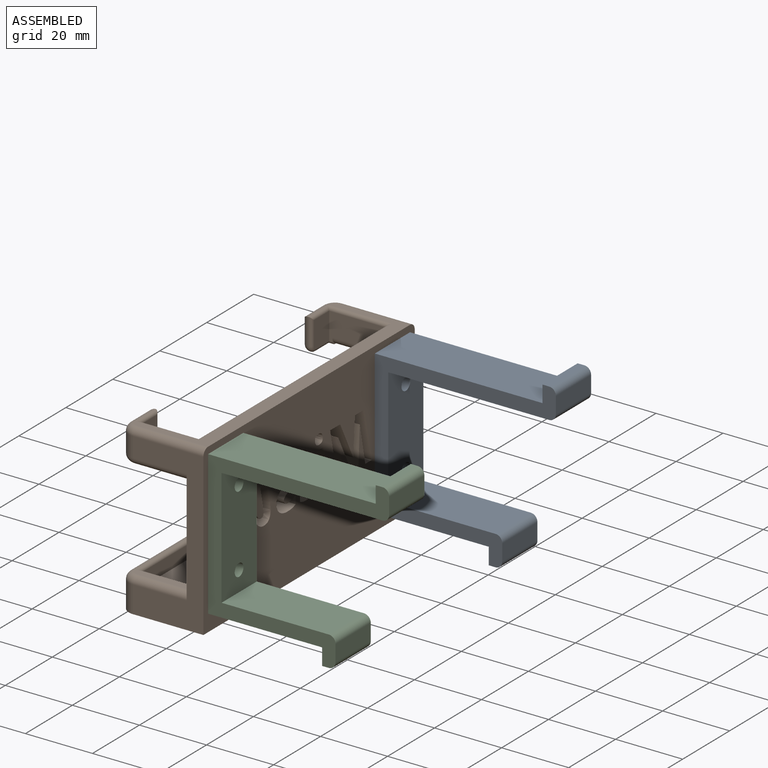
[diagram: assembled view]
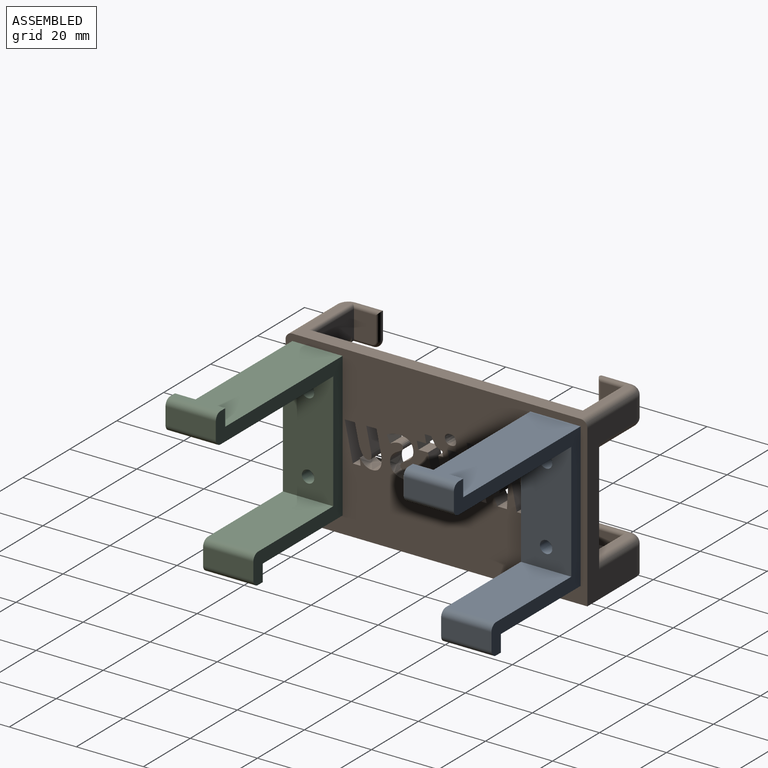
[diagram: assembled view, second angle]
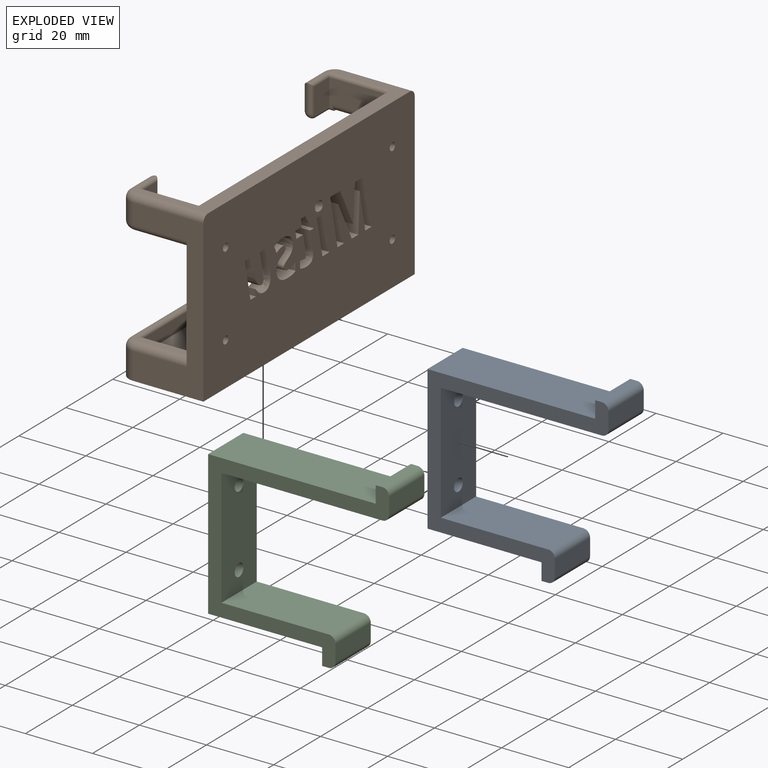
[diagram: exploded view]
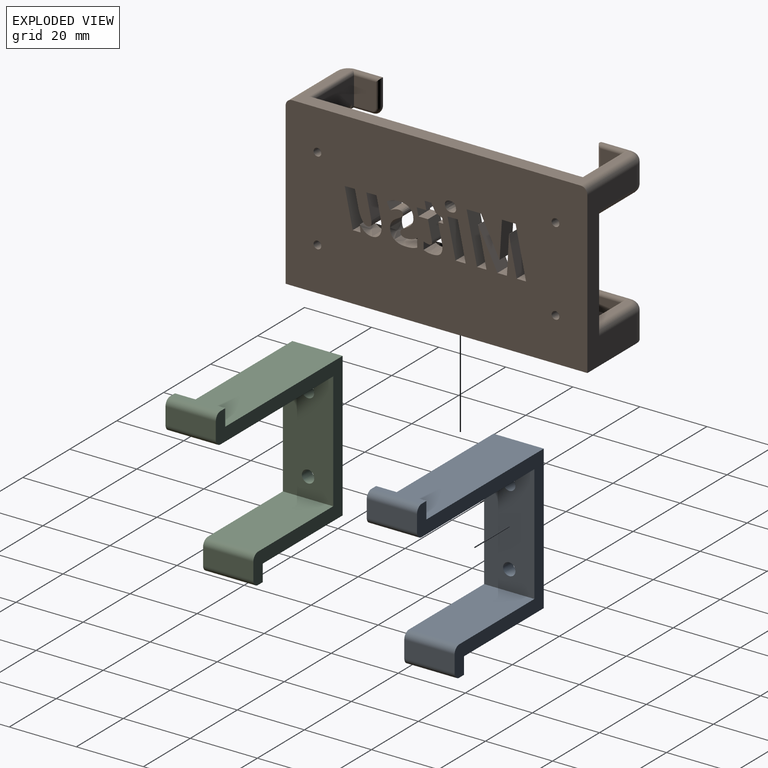
[diagram: exploded view, second angle]
ASSEMBLY  parts=3 mates=4
PART A: 20 faces, bbox 54x53x15 mm
  f0: plane 35x15mm, normal (-1,0,0), area 503.5mm2, adj f6,f7,f12,f13,f14,f15
  f1: plane 43x15mm, normal (1,0,0), area 623.5mm2, adj f2,f11,f12,f13,f14,f15
  f2: plane 50x15mm, normal (0,1,0), area 750mm2, adj f1,f3,f12,f13
  f3: plane 15x5mm, normal (1,0,0), area 75mm2, adj f2,f4,f12,f13
  f4: plane 15x2mm, normal (0,1,0), area 30mm2, adj f3,f12,f13,f16
  f5: plane 15x5mm, normal (-1,0,0), area 75mm2, adj f12,f13,f16,f17
  f6: plane 48x15mm, normal (0,-1,0), area 720mm2, adj f0,f12,f13,f17
  f7: plane 32x15mm, normal (0,1,0), area 480mm2, adj f0,f12,f13,f18
  f8: plane 15x5mm, normal (-1,0,0), area 75mm2, adj f12,f13,f18,f19
  f9: plane 15x2mm, normal (0,-1,0), area 30mm2, adj f10,f12,f13,f19
  f10: plane 15x5mm, normal (1,0,0), area 75mm2, adj f9,f11,f12,f13
  f11: plane 34x15mm, normal (0,-1,0), area 510mm2, adj f1,f10,f12,f13
  f12: plane 54x53mm, normal (0,0,1), area 544.6mm2, adj f0,f1,f2,f3,f4,f5,f6,f7
  f13: plane 54x53mm, normal (0,0,-1), area 544.6mm2, adj f0,f1,f2,f3,f4,f5,f6,f7
  f14: cylinder r=1.85mm len=4mm, axis (1,0,0), area 46.5mm2, adj f0,f1
  f15: cylinder r=1.85mm len=4mm, axis (1,0,0), area 46.5mm2, adj f0,f1
  f16: cylinder r=2mm len=15mm, axis (0,0,-1), area 47.1mm2, adj f4,f5,f12,f13
  f17: cylinder r=2mm len=15mm, axis (0,0,-1), area 47.1mm2, adj f5,f6,f12,f13
  f18: cylinder r=2mm len=15mm, axis (0,0,-1), area 47.1mm2, adj f7,f8,f12,f13
  f19: cylinder r=2mm len=15mm, axis (0,0,-1), area 47.1mm2, adj f8,f9,f12,f13
PART B: 167 faces, bbox 25.3x90.7x50 mm
  f0: plane 2x2mm, normal (1,0,0), area 0.6mm2, adj f12,f20,f35,f161
  f1: plane 18x2mm, normal (0,0,-1), area 19.1mm2, adj f5,f11,f32,f33,f34,f150
  f2: plane 86x23mm, normal (0,0,1), area 418.3mm2, adj f4,f134,f135,f139,f140,f155,f156,f157
  f3: plane 18x2mm, normal (0,0,1), area 35.1mm2, adj f5,f148,f149,f163
  f4: plane 90x50mm, normal (1,0,0), area 4107.7mm2, adj f2,f8,f15,f16,f38,f39,f40,f41
  f5: plane 90x44mm, normal (-1,0,0), area 3435mm2, adj f1,f3,f7,f9,f12,f15,f16,f17
  f6: plane 26x8mm, normal (-1,0,0), area 207.1mm2, adj f8,f23,f27,f37,f146
  f7: plane 18x2mm, normal (0,0,1), area 35.1mm2, adj f5,f144,f145,f165
  f8: plane 90x25mm, normal (0,0,-1), area 1597.1mm2, adj f4,f6,f13,f15,f16,f21,f25,f27
  f9: plane 80x17mm, normal (0,0,1), area 880mm2, adj f5,f17,f18,f21,f22,f23,f130,f131
  f10: plane 6.5x6mm, normal (-1,0,0), area 39mm2, adj f26,f28,f141,f142
  f11: plane 2x2mm, normal (1,0,0), area 0.6mm2, adj f1,f19,f34,f150
  f12: plane 18x2mm, normal (0,0,-1), area 19.1mm2, adj f0,f5,f29,f30,f35,f161
  f13: plane 26x8mm, normal (-1,0,0), area 207.1mm2, adj f8,f22,f25,f36,f147
  f14: plane 6.5x6mm, normal (-1,0,0), area 39mm2, adj f24,f31,f136,f137
  f15: plane 48x21mm, normal (0,-1,0), area 464mm2, adj f4,f5,f8,f26,f27,f30,f139,f144
  f16: plane 48x21mm, normal (0,1,0), area 464mm2, adj f4,f5,f8,f24,f25,f33,f134,f149
  f17: plane 17x4mm, normal (0,1,0), area 68mm2, adj f5,f9,f130,f165
  f18: plane 17x4mm, normal (0,-1,0), area 68mm2, adj f5,f9,f131,f163
  f19: plane 17x8mm, normal (0,-1,0), area 120mm2, adj f5,f11,f34,f132,f150,f155
  f20: plane 17x8mm, normal (0,1,0), area 120mm2, adj f0,f5,f35,f133,f157,f161
  f21: plane 34x5mm, normal (-1,0,0), area 151.7mm2, adj f8,f9,f22,f23,f36,f37
  f22: plane 19x8mm, normal (0,-1,0), area 70.9mm2, adj f9,f13,f21,f36,f131,f147,f164
  f23: plane 19x8mm, normal (0,1,0), area 70.9mm2, adj f6,f9,f21,f37,f130,f146,f166
  f24: cylinder r=4mm len=6mm, axis (0,0,-1), area 37.7mm2, adj f14,f16,f32,f135
  f25: cylinder r=4mm len=8mm, axis (0,0,-1), area 50.3mm2, adj f8,f13,f16,f148
  f26: cylinder r=4mm len=6mm, axis (0,0,1), area 37.7mm2, adj f10,f15,f29,f140
  f27: cylinder r=4mm len=8mm, axis (0,0,1), area 50.3mm2, adj f6,f8,f15,f145
  f28: cylinder r=2mm len=6.5mm, axis (0,1,0), area 20.4mm2, adj f10,f29,f143,f162
  f29: torus R=2mm, axis (0,0,1), area 16.2mm2, adj f12,f26,f28,f30
  f30: cylinder r=2mm len=16mm, axis (-1,0,0), area 50.3mm2, adj f5,f12,f15,f29
  f31: cylinder r=2mm len=6.5mm, axis (0,1,0), area 20.4mm2, adj f14,f32,f138,f151
  f32: torus R=2mm, axis (0,0,1), area 16.2mm2, adj f1,f24,f31,f33
  f33: cylinder r=2mm len=16mm, axis (1,0,0), area 50.3mm2, adj f1,f5,f16,f32
  f34: cylinder r=2mm len=16mm, axis (-1,0,0), area 50.3mm2, adj f1,f5,f11,f19
  f35: cylinder r=2mm len=16mm, axis (1,0,0), area 50.3mm2, adj f0,f5,f12,f20
  f36: cylinder r=2mm len=19mm, axis (-1,0,0), area 59.7mm2, adj f8,f13,f21,f22
  f37: cylinder r=2mm len=19mm, axis (1,0,0), area 59.7mm2, adj f6,f8,f21,f23
  f38: plane 5x3.03mm, normal (0,0,-1), area 15.1mm2, adj f4,f5,f39,f54
  f39: plane 6.08x5mm, normal (0,-0.98,-0.21), area 31.1mm2, adj f4,f5,f38,f40
  f40: extruded ~5x2.14mm, area 10.8mm2, adj f4,f5,f39,f41
  f41: extruded ~5x2.4mm, area 12.8mm2, adj f4,f5,f40,f42
  f42: extruded ~5x2.12mm, area 11.8mm2, adj f4,f5,f41,f43
  f43: extruded ~5x3.58mm, area 22.2mm2, adj f4,f5,f42,f44
  f44: plane 5x0.06mm, normal (0,0,1), area 0.3mm2, adj f4,f5,f43,f45
  f45: plane 5x2.09mm, normal (0,-0.99,-0.1), area 10.5mm2, adj f4,f5,f44,f46
  f46: plane 5x2.32mm, normal (0,0,1), area 11.6mm2, adj f4,f5,f45,f47
  f47: plane 11.26x5mm, normal (0,0.98,0.21), area 57.5mm2, adj f4,f5,f46,f48
  f48: plane 5x3.03mm, normal (0,0,-1), area 15.1mm2, adj f4,f5,f47,f49
  f49: plane 5x4.66mm, normal (0,-0.98,-0.21), area 23.8mm2, adj f4,f5,f48,f50
  f50: extruded ~5x3.2mm, area 17.2mm2, adj f4,f5,f49,f51
  f51: extruded ~5x1.68mm, area 10.6mm2, adj f4,f5,f50,f52
  f52: extruded ~5x1.24mm, area 9.4mm2, adj f4,f5,f51,f53
  f53: extruded ~5x1.2mm, area 6.1mm2, adj f4,f5,f52,f54
  f54: plane 6.58x5mm, normal (0,0.98,0.21), area 33.6mm2, adj f4,f5,f38,f53
  f55: extruded ~5x1.63mm, area 8.4mm2, adj f4,f5,f56,f73
  f56: extruded ~5x0.89mm, area 6.6mm2, adj f4,f5,f55,f57
  f57: extruded ~5x0.54mm, area 2.7mm2, adj f4,f5,f56,f58
  f58: plane 5.43x5mm, normal (0,0.98,0.21), area 27.7mm2, adj f4,f5,f57,f59
  f59: plane 5x2.84mm, normal (0,0,1), area 14.2mm2, adj f4,f5,f58,f60
  f60: plane 5x2.31mm, normal (0,0.98,0.21), area 11.8mm2, adj f4,f5,f59,f61
  f61: plane 5x2.85mm, normal (0,0,-1), area 14.2mm2, adj f4,f5,f60,f62
  f62: plane 5x2.4mm, normal (0,0.98,0.2), area 12.2mm2, adj f4,f5,f61,f63
  f63: plane 5x1.96mm, normal (0,0,-1), area 9.8mm2, adj f4,f5,f62,f64
  f64: plane 5x2.38mm, normal (0,-0.87,-0.49), area 13.6mm2, adj f4,f5,f63,f65
  f65: plane 5x1.98mm, normal (0,-0.39,-0.92), area 10.7mm2, adj f4,f5,f64,f66
  f66: plane 5x1.48mm, normal (0,-0.98,-0.19), area 7.6mm2, adj f4,f5,f65,f67
  f67: plane 5x1.53mm, normal (0,0,1), area 7.7mm2, adj f4,f5,f66,f68
  f68: plane 5.43x5mm, normal (0,-0.98,-0.21), area 27.7mm2, adj f4,f5,f67,f69
  f69: extruded ~5x1.13mm, area 5.7mm2, adj f4,f5,f68,f70
  f70: extruded ~5x1.97mm, area 10.8mm2, adj f4,f5,f69,f71
  f71: extruded ~5x2.22mm, area 11.8mm2, adj f4,f5,f70,f72
  f72: extruded ~5x2.68mm, area 13.8mm2, adj f4,f5,f71,f73
  f73: plane 5x2.27mm, normal (0,1,0), area 11.3mm2, adj f4,f5,f55,f72
  f74: extruded ~5x2.91mm, area 16.4mm2, adj f4,f5,f75,f96
  f75: extruded ~5x1.71mm, area 9.2mm2, adj f4,f5,f74,f76
  f76: extruded ~5x1.79mm, area 11.4mm2, adj f4,f5,f75,f77
  f77: extruded ~5x1.21mm, area 7.1mm2, adj f4,f5,f76,f78
  f78: extruded ~5x0.69mm, area 3.9mm2, adj f4,f5,f77,f79
  f79: extruded ~5x0.69mm, area 4mm2, adj f4,f5,f78,f80
  f80: extruded ~5x0.93mm, area 4.9mm2, adj f4,f5,f79,f81
  f81: extruded ~5x2.6mm, area 13.8mm2, adj f4,f5,f80,f82
  f82: plane 5x2.17mm, normal (0,0.91,0.42), area 11.9mm2, adj f4,f5,f81,f83
  f83: extruded ~5x3.65mm, area 19.1mm2, adj f4,f5,f82,f84
  f84: extruded ~5x3.18mm, area 16.9mm2, adj f4,f5,f83,f85
  f85: extruded ~5x2.65mm, area 14.9mm2, adj f4,f5,f84,f86
  f86: extruded ~5x1.61mm, area 8.5mm2, adj f4,f5,f85,f87
  f87: extruded ~5x1.7mm, area 11mm2, adj f4,f5,f86,f88
  f88: extruded ~5x1.32mm, area 7.9mm2, adj f4,f5,f87,f89
  f89: extruded ~5x0.77mm, area 4.4mm2, adj f4,f5,f88,f90
  f90: extruded ~5x0.89mm, area 5.4mm2, adj f4,f5,f89,f91
  f91: extruded ~5x1.32mm, area 6.9mm2, adj f4,f5,f90,f92
  f92: extruded ~5x3.21mm, area 16.9mm2, adj f4,f5,f91,f93
  f93: plane 5x2.5mm, normal (0,-1,0), area 12.5mm2, adj f4,f5,f92,f94
  f94: extruded ~5x1.5mm, area 7.9mm2, adj f4,f5,f93,f95
  f95: extruded ~5x1.88mm, area 9.4mm2, adj f4,f5,f94,f96
  f96: extruded ~5x3.49mm, area 18.5mm2, adj f4,f5,f74,f95
  f97: extruded ~5x1.32mm, area 7.2mm2, adj f4,f5,f98,f103
  f98: extruded ~5x1.52mm, area 11.2mm2, adj f4,f5,f97,f99
  f99: extruded ~5x1.37mm, area 7.5mm2, adj f4,f5,f98,f100
  f100: extruded ~5x1.31mm, area 7.1mm2, adj f4,f5,f99,f101
  f101: extruded ~5x0.9mm, area 5mm2, adj f4,f5,f100,f102
  f102: extruded ~5x1.12mm, area 5.9mm2, adj f4,f5,f101,f103
  f103: extruded ~5x1.36mm, area 7.3mm2, adj f4,f5,f97,f102
  f104: plane 5x3.03mm, normal (0,0,1), area 15.1mm2, adj f4,f5,f105,f107
  f105: plane 11.26x5mm, normal (0,0.98,0.21), area 57.5mm2, adj f4,f5,f104,f106
  f106: plane 5x3.03mm, normal (0,0,-1), area 15.2mm2, adj f4,f5,f105,f107
  f107: plane 11.26x5mm, normal (0,-0.98,-0.21), area 57.5mm2, adj f4,f5,f104,f106
  f108: plane 11.01x5.55mm, normal (0,-0.89,-0.45), area 61.6mm2, adj f4,f5,f109,f125
  f109: plane 5x0.04mm, normal (0,0,-1), area 0.2mm2, adj f4,f5,f108,f110
  f110: plane 11.01x5mm, normal (0,1,-0.06), area 55.1mm2, adj f4,f5,f109,f111
  f111: plane 5x4.07mm, normal (0,0,-1), area 20.4mm2, adj f4,f5,f110,f112
  f112: plane 14.72x5mm, normal (0,-0.98,-0.21), area 75.2mm2, adj f4,f5,f111,f113
  f113: plane 5x2.77mm, normal (0,0,1), area 13.8mm2, adj f4,f5,f112,f114
  f114: extruded ~9.08x5mm, area 46.4mm2, adj f4,f5,f113,f115
  f115: extruded ~5x2.33mm, area 11.8mm2, adj f4,f5,f114,f116
  f116: plane 5x0.04mm, normal (0,0,1), area 0.2mm2, adj f4,f5,f115,f117
  f117: plane 11.41x5mm, normal (0,-1,0.05), area 57.1mm2, adj f4,f5,f116,f118
  f118: plane 5x2.83mm, normal (0,0,1), area 14.1mm2, adj f4,f5,f117,f119
  f119: plane 11.41x5.73mm, normal (0,0.89,0.45), area 63.8mm2, adj f4,f5,f118,f120
  f120: plane 5x0.05mm, normal (0,0,1), area 0.2mm2, adj f4,f5,f119,f121
  f121: extruded ~5x4.44mm, area 22.8mm2, adj f4,f5,f120,f122
  f122: plane 6.97x5mm, normal (0,-0.98,-0.2), area 35.6mm2, adj f4,f5,f121,f123
  f123: plane 5x2.82mm, normal (0,0,1), area 14.1mm2, adj f4,f5,f122,f124
  f124: plane 14.72x5mm, normal (0,0.98,0.21), area 75.2mm2, adj f4,f5,f123,f125
  f125: plane 5x4.26mm, normal (0,0,-1), area 21.3mm2, adj f4,f5,f108,f124
  f126: cylinder r=1.15mm len=5mm, axis (1,0,0), area 36.1mm2, adj f4,f5
  f127: cylinder r=1.15mm len=5mm, axis (1,0,0), area 36.1mm2, adj f4,f5
  f128: cylinder r=1.15mm len=5mm, axis (1,0,0), area 36.1mm2, adj f4,f5
  f129: cylinder r=1.15mm len=5mm, axis (1,0,0), area 36.1mm2, adj f4,f5
  f130: plane 25x4mm, normal (1,0,0), area 100mm2, adj f9,f17,f23,f166
  f131: plane 25x4mm, normal (1,0,0), area 100mm2, adj f9,f18,f22,f164
  f132: plane 8x6.5mm, normal (1,0,0), area 51.8mm2, adj f19,f151,f152,f153,f154
  f133: plane 8x6.5mm, normal (1,0,0), area 51.8mm2, adj f20,f158,f159,f160,f162
  f134: cylinder r=2mm len=21mm, axis (-1,0,0), area 66mm2, adj f2,f4,f16,f135
  f135: torus R=2mm, axis (0,0,-1), area 16.2mm2, adj f2,f24,f134,f136
  f136: cylinder r=2mm len=8.5mm, axis (0,1,0), area 24.4mm2, adj f14,f135,f137,f154
  f137: cylinder r=2mm len=8mm, axis (0,0,-1), area 22.8mm2, adj f14,f136,f138,f153
  f138: sphere r=2mm, area 6.3mm2, adj f31,f137,f152
  f139: cylinder r=2mm len=21mm, axis (1,0,0), area 66mm2, adj f2,f4,f15,f140
  f140: torus R=2mm, axis (0,0,-1), area 16.2mm2, adj f2,f26,f139,f141
  f141: cylinder r=2mm len=8.5mm, axis (0,1,0), area 24.4mm2, adj f10,f140,f142,f158
  f142: cylinder r=2mm len=8mm, axis (0,0,1), area 22.8mm2, adj f10,f141,f143,f159
  f143: sphere r=2mm, area 6.3mm2, adj f28,f142,f160
  f144: cylinder r=2mm len=16mm, axis (1,0,0), area 50.3mm2, adj f5,f7,f15,f145
  f145: torus R=2mm, axis (0,0,-1), area 16.2mm2, adj f7,f27,f144,f146
  f146: cylinder r=2mm len=26mm, axis (0,1,0), area 81.7mm2, adj f6,f23,f145,f166
  f147: cylinder r=2mm len=26mm, axis (0,1,0), area 81.7mm2, adj f13,f22,f148,f164
  f148: torus R=2mm, axis (0,0,-1), area 16.2mm2, adj f3,f25,f147,f149
  f149: cylinder r=2mm len=16mm, axis (-1,0,0), area 50.3mm2, adj f3,f5,f16,f148
  f150: cylinder r=1mm len=2mm, axis (-1,0,0), area 2.1mm2, adj f1,f11,f19,f151
  f151: cylinder r=1mm len=6.5mm, axis (0,-1,0), area 9.2mm2, adj f31,f132,f150,f152
  f152: torus R=1mm, axis (-1,0,0), area 4mm2, adj f132,f138,f151,f153
  f153: cylinder r=1mm len=8mm, axis (0,0,1), area 12mm2, adj f132,f137,f152,f154
  f154: cylinder r=1mm len=8.5mm, axis (0,1,0), area 11.8mm2, adj f132,f136,f153,f155
  f155: cylinder r=1mm len=19mm, axis (-1,0,0), area 27.8mm2, adj f2,f19,f154,f156
  f156: cylinder r=1mm len=82mm, axis (0,-1,0), area 126.8mm2, adj f2,f5,f155,f157
  f157: cylinder r=1mm len=19mm, axis (1,0,0), area 27.8mm2, adj f2,f20,f156,f158
  f158: cylinder r=1mm len=8.5mm, axis (0,1,0), area 11.8mm2, adj f133,f141,f157,f159
  f159: cylinder r=1mm len=8mm, axis (0,0,-1), area 12mm2, adj f133,f142,f158,f160
  f160: torus R=1mm, axis (-1,0,0), area 4mm2, adj f133,f143,f159,f162
  f161: cylinder r=1mm len=2mm, axis (1,0,0), area 2.1mm2, adj f0,f12,f20,f162
  f162: cylinder r=1mm len=6.5mm, axis (0,-1,0), area 9.2mm2, adj f28,f133,f160,f161
  f163: cylinder r=1mm len=18mm, axis (1,0,0), area 27.3mm2, adj f3,f5,f18,f164
  f164: cylinder r=1mm len=26mm, axis (0,1,0), area 39.8mm2, adj f22,f131,f147,f163
  f165: cylinder r=1mm len=18mm, axis (-1,0,0), area 27.3mm2, adj f5,f7,f17,f166
  f166: cylinder r=1mm len=26mm, axis (0,1,0), area 39.8mm2, adj f23,f130,f146,f165
PART C: same geometry as A
PLACE A rot(axis=(0,0.71,0.71),180deg) t=(-81.44,-198.85,49.06)mm
PLACE B t=(-54.63,-181.85,1.06)mm
PLACE C rot(axis=(0,-0.71,-0.71),180deg) t=(-81.44,-269.85,49.06)mm
MATE planar C.f15 <-> B.f4  axis (-1,0,0) through (-54.63,-262.35,39.06)mm
MATE slider A.f15 <-> B.f129  axis (1,0,0) through (-50.63,-191.35,39.06)mm
MATE planar A.f1 <-> B.f4  axis (-1,0,0) through (-54.63,-191.35,27.56)mm
MATE revolute C.f15 <-> B.f126  axis (-1,0,0) through (-54.63,-262.35,39.06)mm
